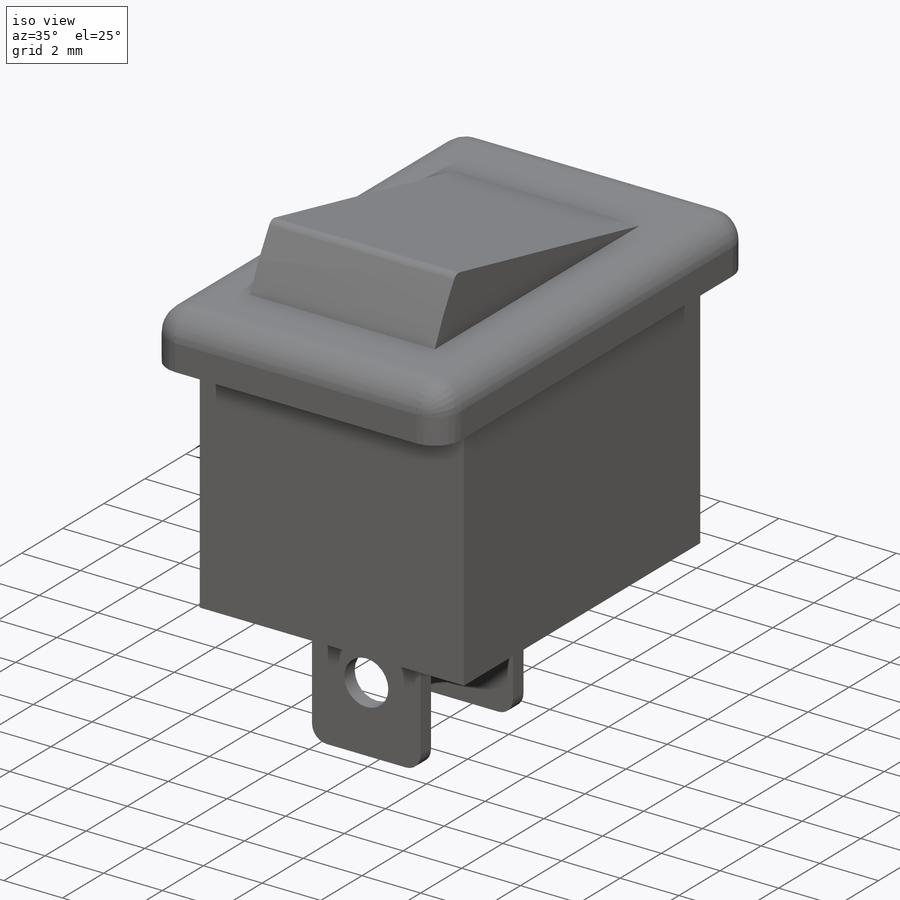
[diagram: iso view]
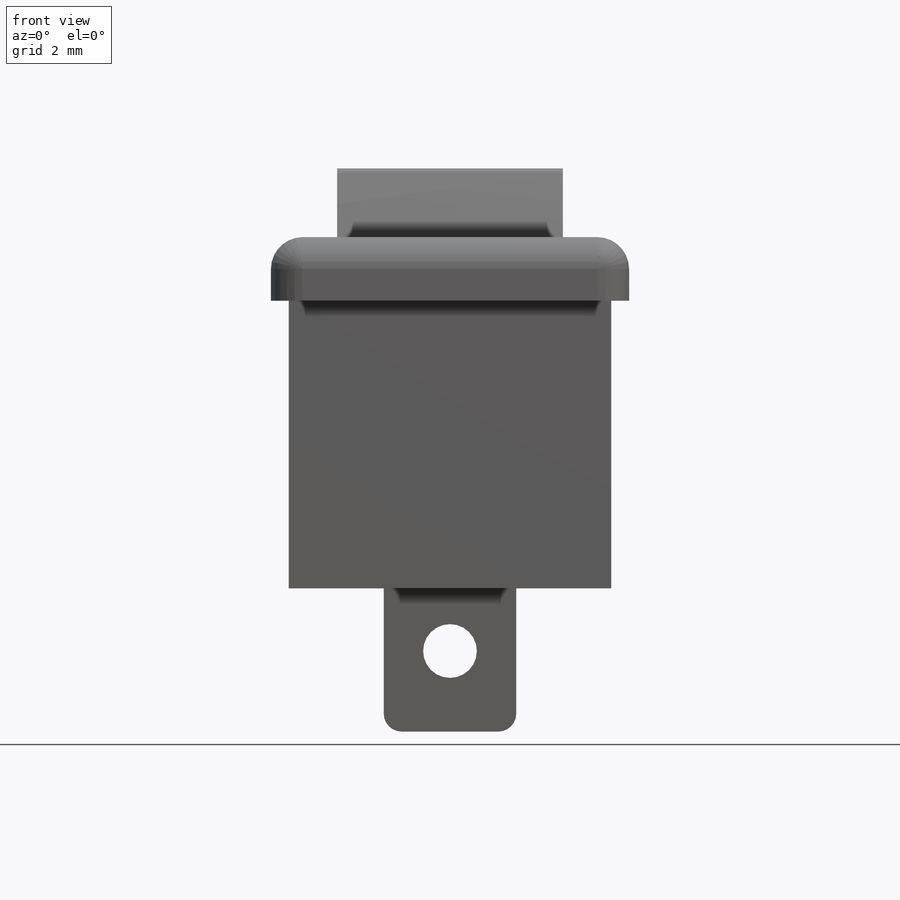
[diagram: front view]
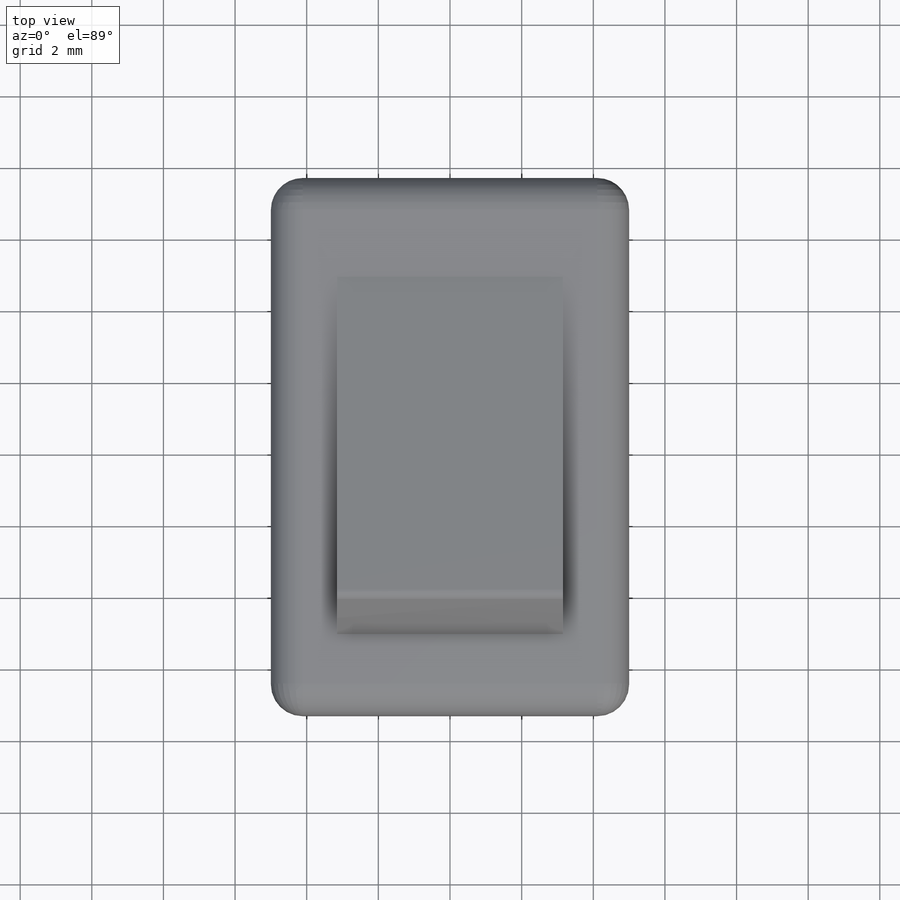
[diagram: top view]
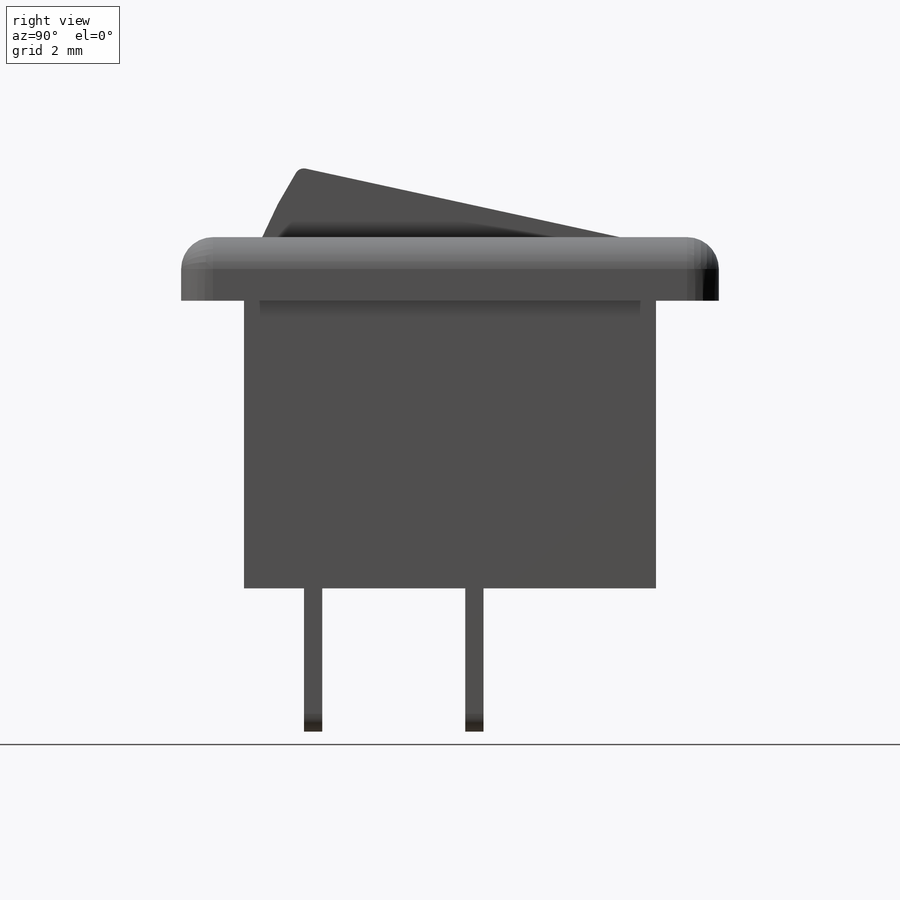
[diagram: right view]
SOLIDWORKS PART (.sldprt)
format: sldprt  version: not decoded by parser v0  size: 264,704 bytes
history: native  units: mm
features: sketch x5, extrude x4, fillet x2, material x1, cut_extrude x1 (+14 scaffold rows collapsed)
feature tree (27):
  scaffold x14  (default folders/planes/origin — collapsed)
  material  "Material <not specified>"
  sketch  "Sketch1"  dims[D1=15.0114mm D2=11.5mm D3=9.8044mm D4=1.778mm]
  extrude  "Boss-Extrude1"  Depth=9mm
  sketch  "Sketch2"  dims[D1=10.0mm]
  extrude  "Boss-Extrude2"  [1 undecoded]
  fillet  "Fillet1"  Radius=0.889mm
  sketch  "Sketch3"  dims[D1=0.508mm D2=4.5mm D3=3.7mm D4=5.07mm]
  extrude  "Boss-Extrude3"  Depth=4mm
  fillet  "Fillet2"  Radius=0.5mm
  sketch  "Sketch4"  dims[D1=1.5mm]
  cut_extrude  "Cut-Extrude1"  [1 undecoded]
  sketch  "Sketch5"  dims[D5=0.254mm D1=1.95mm D2=0.508mm D3=1.016mm D4=9.144mm]
  extrude  "Boss-Extrude4"  Depth=6.3mm
decode coverage: 10 of 12 modeling features carry decoded parameters
note: 2 parameter values undecoded
note: suppression state not decoded; provenance and decode notes live in map.json
